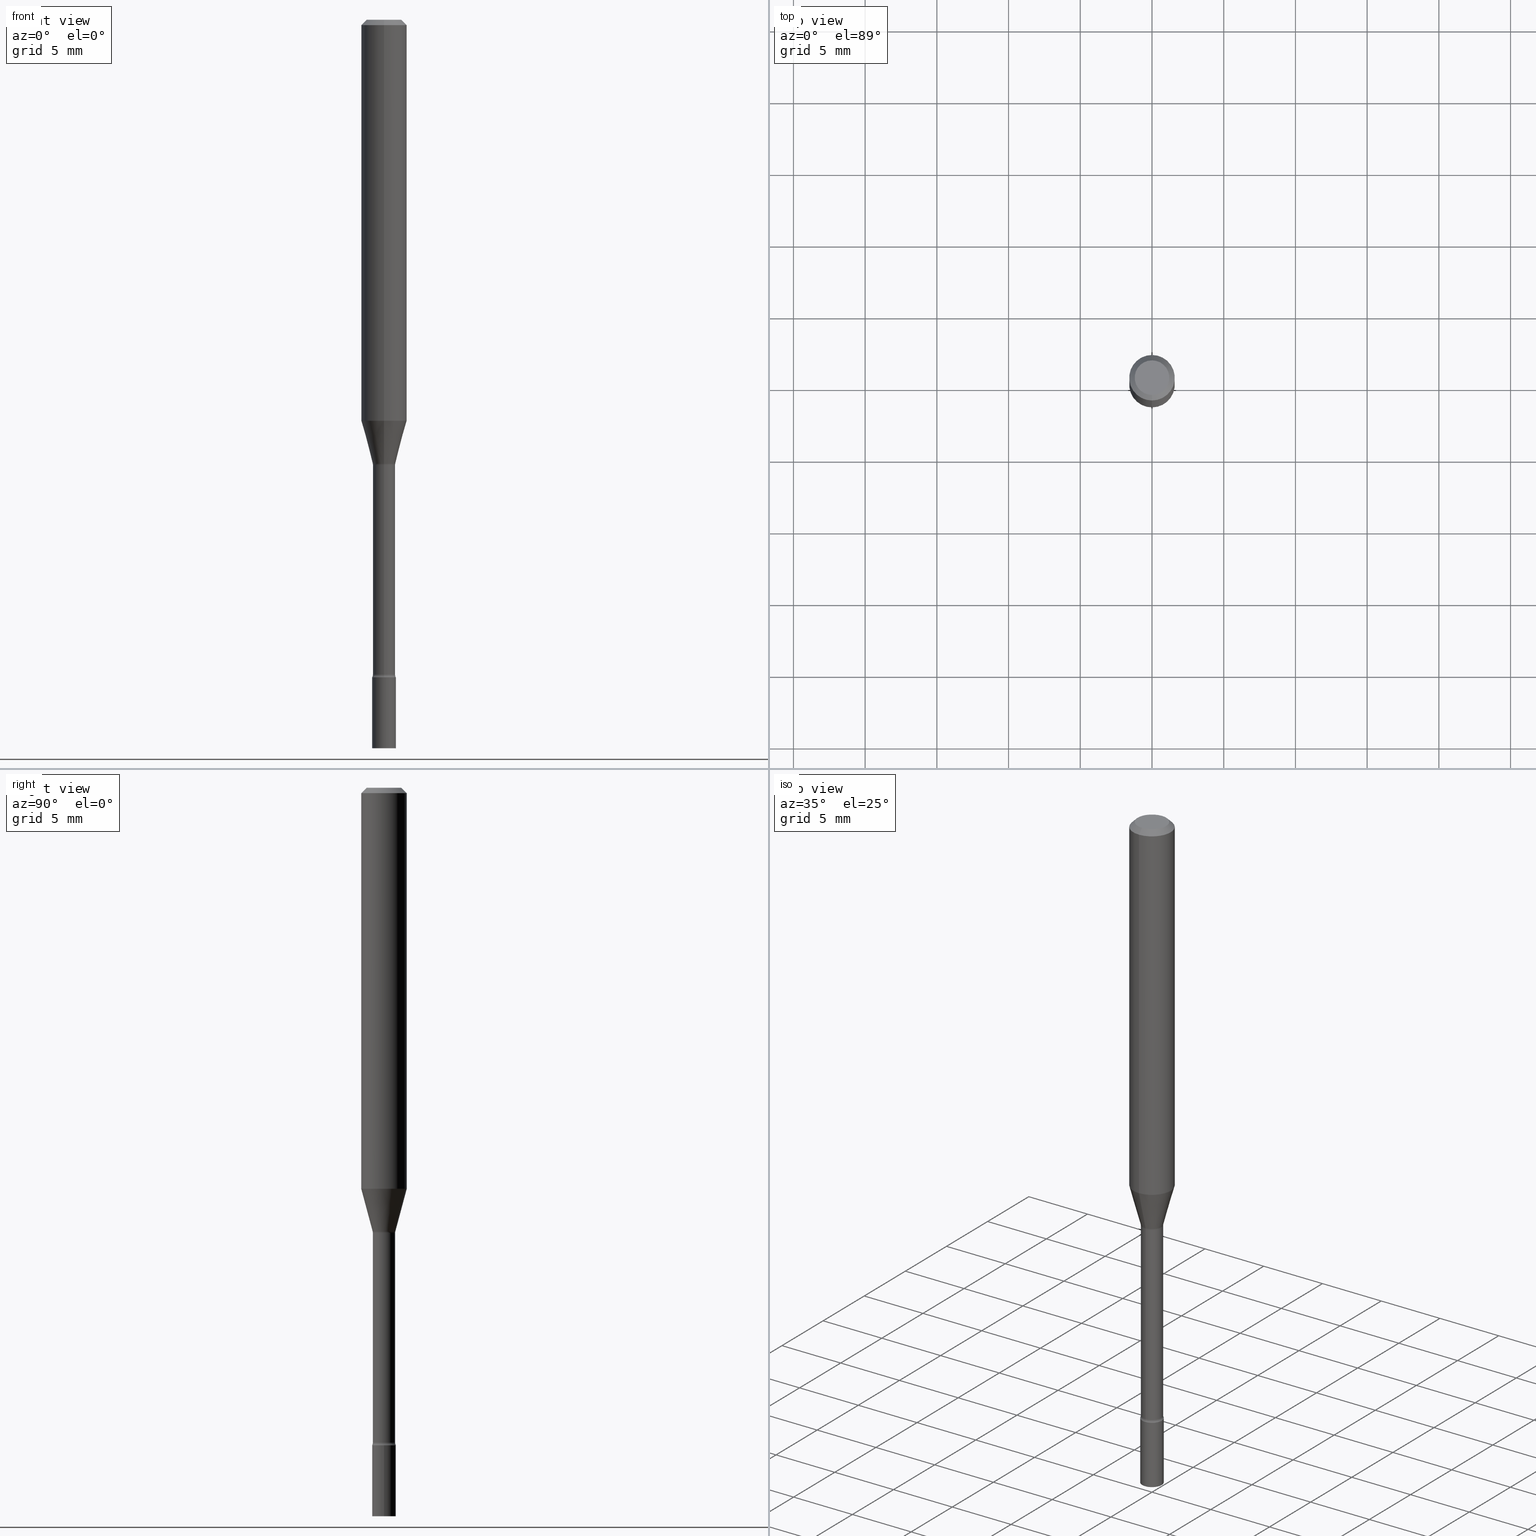
[diagram: canonical four-view strip — front | top / right | iso, engineering-drawing reading convention]
A machine part, canonical four-view strip (front | top / right | iso — engineering-drawing reading convention). The complete STEP part file that produces these views, byte-faithful:
ISO-10303-21;
HEADER;
FILE_DESCRIPTION (( 'STEP AP203' ),
    '1' );
FILE_NAME ('09380.STEP',
    '2024-03-08T23:31:31',
    ( '' ),
    ( '' ),
    'SwSTEP 2.0',
    'SolidWorks 2023',
    '' );
FILE_SCHEMA (( 'CONFIG_CONTROL_DESIGN' ));
ENDSEC;

DATA;
#1 = CIRCLE ( 'NONE', #319, 0.06250000000000000000 ) ;
#2 = CIRCLE ( 'NONE', #347, 0.03055000000000000770 ) ;
#3 = COORDINATED_UNIVERSAL_TIME_OFFSET ( 5, 0, .BEHIND. ) ;
#4 = COORDINATED_UNIVERSAL_TIME_OFFSET ( 5, 0, .BEHIND. ) ;
#5 = ORIENTED_EDGE ( 'NONE', *, *, #223, .F. ) ;
#6 = ADVANCED_BREP_SHAPE_REPRESENTATION ( '09380', ( #214, #381, #273 ), #315 ) ;
#7 = AXIS2_PLACEMENT_3D ( 'NONE', #458, #222, #140 ) ;
#8 = CIRCLE ( 'NONE', #7, 0.04749999999999999362 ) ;
#9 = CC_DESIGN_APPROVAL ( #438, ( #372 ) ) ;
#10 = CC_DESIGN_DATE_AND_TIME_ASSIGNMENT ( #120, #407, ( #462 ) ) ;
#11 = ORIENTED_EDGE ( 'NONE', *, *, #223, .T. ) ;
#12 = DIRECTION ( 'NONE',  ( 1.000000000000000000, -6.982962677686265922E-15, 4.876176775795935232E-29 ) ) ;
#13 = VERTEX_POINT ( 'NONE', #78 ) ;
#14 = VERTEX_POINT ( 'NONE', #334 ) ;
#15 = EDGE_CURVE ( 'NONE', #52, #376, #232, .T. ) ;
#16 = ORIENTED_EDGE ( 'NONE', *, *, #63, .T. ) ;
#17 = LINE ( 'NONE', #62, #456 ) ;
#18 = EDGE_CURVE ( 'NONE', #194, #268, #387, .T. ) ;
#19 = DESIGN_CONTEXT ( 'detailed design', #326, 'design' ) ;
#20 = AXIS2_PLACEMENT_3D ( 'NONE', #136, #445, #81 ) ;
#21 = CIRCLE ( 'NONE', #116, 0.03106111260566398607 ) ;
#22 = CARTESIAN_POINT ( 'NONE',  ( 3.668709739033173181E-31, -5.236496628825025190E-17, -0.01500000000000003067 ) ) ;
#23 = DIRECTION ( 'NONE',  ( -2.445806492688777345E-29, 3.490997752550009973E-15, 1.000000000000000000 ) ) ;
#24 = ORIENTED_EDGE ( 'NONE', *, *, #139, .F. ) ;
#25 = DIRECTION ( 'NONE',  ( -2.445806492688777345E-29, 3.490997752550010367E-15, 1.000000000000000000 ) ) ;
#26 = CARTESIAN_POINT ( 'NONE',  ( 2.269462870248477753E-16, 0.03249999999999370059, -1.804999999999999938 ) ) ;
#27 = AXIS2_PLACEMENT_3D ( 'NONE', #452, #118, #12 ) ;
#28 = FACE_OUTER_BOUND ( 'NONE', #85, .T. ) ;
#29 = CARTESIAN_POINT ( 'NONE',  ( 3.236522161387700589E-16, 0.04554999999999379684, -1.797604224178627419 ) ) ;
#30 = DIRECTION ( 'NONE',  ( -2.445468806185136597E-29, 3.491481338843145583E-15, 1.000000000000000000 ) ) ;
#31 = EDGE_CURVE ( 'NONE', #194, #360, #96, .T. ) ;
#32 = CARTESIAN_POINT ( 'NONE',  ( 3.316907271900976096E-16, 0.04749999999999999362, -1.802908338845219502E-16 ) ) ;
#33 = ORIENTED_EDGE ( 'NONE', *, *, #485, .T. ) ;
#34 = EDGE_LOOP ( 'NONE', ( #51, #16, #478, #92 ) ) ;
#35 = EDGE_CURVE ( 'NONE', #227, #13, #158, .T. ) ;
#36 = DIRECTION ( 'NONE',  ( 6.982962677686265922E-15, 1.000000000000000000, -3.490997752550010367E-15 ) ) ;
#37 = AXIS2_PLACEMENT_3D ( 'NONE', #469, #269, #230 ) ;
#38 = ORIENTED_EDGE ( 'NONE', *, *, #208, .T. ) ;
#39 = CARTESIAN_POINT ( 'NONE',  ( 2.309263891220770403E-16, 0.03249999999999374917, -1.804999999999999938 ) ) ;
#40 = ORIENTED_EDGE ( 'NONE', *, *, #35, .F. ) ;
#41 = PERSON_AND_ORGANIZATION ( #472, #395 ) ;
#42 = AXIS2_PLACEMENT_3D ( 'NONE', #508, #496, #258 ) ;
#43 = APPROVAL_DATE_TIME ( #202, #438 ) ;
#44 = CARTESIAN_POINT ( 'NONE',  ( 0.000000000000000000, 0.000000000000000000, 0.000000000000000000 ) ) ;
#45 = ADVANCED_FACE ( 'NONE', ( #460 ), #80, .F. ) ;
#46 = CALENDAR_DATE ( 2024, 8, 3 ) ;
#47 = ORIENTED_EDGE ( 'NONE', *, *, #205, .T. ) ;
#48 = AXIS2_PLACEMENT_3D ( 'NONE', #348, #102, #396 ) ;
#49 = AXIS2_PLACEMENT_3D ( 'NONE', #317, #517, #437 ) ;
#50 = APPROVAL_DATE_TIME ( #138, #429 ) ;
#51 = ORIENTED_EDGE ( 'NONE', *, *, #205, .F. ) ;
#52 = VERTEX_POINT ( 'NONE', #421 ) ;
#53 = DIRECTION ( 'NONE',  ( 4.937700262164548042E-15, 0.7071067811865451302, -0.7071067811865499042 ) ) ;
#54 = CARTESIAN_POINT ( 'NONE',  ( 0.03250000000000000111, -2.269462870248036484E-16, 1.584757452133678993E-30 ) ) ;
#55 = DIRECTION ( 'NONE',  ( 7.105427357601001859E-15, 1.000000000000000000, 0.000000000000000000 ) ) ;
#56 = CIRCLE ( 'NONE', #175, 0.01499999999999998557 ) ;
#57 = CC_DESIGN_APPROVAL ( #429, ( #108 ) ) ;
#58 = CARTESIAN_POINT ( 'NONE',  ( -4.364351673553916201E-16, -0.06250000000000000000, 2.181873595343755987E-16 ) ) ;
#59 = ORIENTED_EDGE ( 'NONE', *, *, #494, .T. ) ;
#60 = CARTESIAN_POINT ( 'NONE',  ( 2.988713869080976810E-29, -4.265911236708938277E-15, -1.221974787463810497 ) ) ;
#61 = CARTESIAN_POINT ( 'NONE',  ( 4.890937612370273194E-29, -6.982962677686291165E-15, -2.000000000000000000 ) ) ;
#62 = CARTESIAN_POINT ( 'NONE',  ( 2.207024792658399811E-16, 0.03106111260565973600, -1.218092501787273019 ) ) ;
#63 = EDGE_CURVE ( 'NONE', #418, #268, #221, .T. ) ;
#64 = CARTESIAN_POINT ( 'NONE',  ( 3.323958445579647462E-16, 0.03106111260565973600, -1.218092501787273019 ) ) ;
#65 = CIRCLE ( 'NONE', #475, 0.03250000000000000111 ) ;
#66 = DIRECTION ( 'NONE',  ( -2.445806492688777345E-29, 3.490997752550009973E-15, 1.000000000000000000 ) ) ;
#67 = CARTESIAN_POINT ( 'NONE',  ( -2.133295098033154028E-16, -0.03055000000000000077, 1.066499813404028024E-16 ) ) ;
#68 = ORIENTED_EDGE ( 'NONE', *, *, #31, .T. ) ;
#69 = FACE_OUTER_BOUND ( 'NONE', #257, .T. ) ;
#70 = ADVANCED_FACE ( 'NONE', ( #311 ), #335, .F. ) ;
#71 = FACE_OUTER_BOUND ( 'NONE', #419, .T. ) ;
#72 = CARTESIAN_POINT ( 'NONE',  ( 4.890937612370273194E-29, -6.982962677686291165E-15, -2.000000000000000000 ) ) ;
#73 = AXIS2_PLACEMENT_3D ( 'NONE', #330, #255, #366 ) ;
#74 = AXIS2_PLACEMENT_3D ( 'NONE', #238, #318, #397 ) ;
#75 = AXIS2_PLACEMENT_3D ( 'NONE', #189, #479, #113 ) ;
#76 = ORIENTED_EDGE ( 'NONE', *, *, #386, .F. ) ;
#77 = CARTESIAN_POINT ( 'NONE',  ( 4.414071195164171423E-29, -6.302123816611877952E-15, -1.804999999999999938 ) ) ;
#78 = CARTESIAN_POINT ( 'NONE',  ( -2.133295098032855987E-16, -0.03055000000000427166, -1.221974787463810497 ) ) ;
#79 =( NAMED_UNIT ( * ) PLANE_ANGLE_UNIT ( ) SI_UNIT ( $, .RADIAN. ) );
#80 = TOROIDAL_SURFACE ( 'NONE', #271, 0.04555000000000000021, 0.01499999999999998557 ) ;
#81 = DIRECTION ( 'NONE',  ( -6.982962677686265922E-15, -1.000000000000000000, 4.370956789862821150E-15 ) ) ;
#82 = DIRECTION ( 'NONE',  ( 1.000000000000000000, -6.982962677686258033E-15, 0.000000000000000000 ) ) ;
#83 = COORDINATED_UNIVERSAL_TIME_OFFSET ( 5, 0, .BEHIND. ) ;
#84 = ADVANCED_FACE ( 'NONE', ( #515 ), #107, .T. ) ;
#85 = EDGE_LOOP ( 'NONE', ( #127, #33, #216, #333 ) ) ;
#86 = PERSON_AND_ORGANIZATION_ROLE ( 'creator' ) ;
#87 = ORIENTED_EDGE ( 'NONE', *, *, #274, .T. ) ;
#88 = CONICAL_SURFACE ( 'NONE', #402, 0.06250000000000000000, 0.7853981633974483900 ) ;
#89 = ORIENTED_EDGE ( 'NONE', *, *, #411, .T. ) ;
#90 = DIRECTION ( 'NONE',  ( -2.445806492688777345E-29, 3.490997752550009973E-15, 1.000000000000000000 ) ) ;
#91 = DIRECTION ( 'NONE',  ( -6.982962677686265922E-15, -1.000000000000000000, 3.483106191921935554E-15 ) ) ;
#92 = ORIENTED_EDGE ( 'NONE', *, *, #324, .F. ) ;
#93 = CARTESIAN_POINT ( 'NONE',  ( -3.180739499685659028E-16, -0.04555000000000634236, -1.797604224178626975 ) ) ;
#94 = ORIENTED_EDGE ( 'NONE', *, *, #471, .T. ) ;
#95 = DIRECTION ( 'NONE',  ( -2.445468806185136597E-29, 3.491481338843145583E-15, 1.000000000000000000 ) ) ;
#96 = CIRCLE ( 'NONE', #20, 0.06250000000000000000 ) ;
#97 = CIRCLE ( 'NONE', #75, 0.06250000000000000000 ) ;
#98 = DIRECTION ( 'NONE',  ( -6.982962677686265922E-15, -1.000000000000000000, 3.483106191921935554E-15 ) ) ;
#99 = EDGE_CURVE ( 'NONE', #328, #112, #161, .T. ) ;
#100 = EDGE_LOOP ( 'NONE', ( #177, #455, #135, #211 ) ) ;
#101 = DIRECTION ( 'NONE',  ( 7.105427357601001859E-15, 1.000000000000000000, 0.000000000000000000 ) ) ;
#102 = DIRECTION ( 'NONE',  ( -2.445806492688777345E-29, 3.490997752550009973E-15, 1.000000000000000000 ) ) ;
#103 = ADVANCED_FACE ( 'NONE', ( #340 ), #299, .T. ) ;
#104 = DIRECTION ( 'NONE',  ( -6.982962677686265922E-15, -1.000000000000000000, 4.397537249142375435E-15 ) ) ;
#105 = CARTESIAN_POINT ( 'NONE',  ( 3.840629472727447874E-16, 0.04749999999999999362, -1.947592745229184365E-16 ) ) ;
#106 = EDGE_CURVE ( 'NONE', #380, #132, #65, .T. ) ;
#107 = CONICAL_SURFACE ( 'NONE', #73, 0.03106111260566398607, 0.2617993877991500740 ) ;
#108 = SECURITY_CLASSIFICATION ( '', '', #448 ) ;
#109 = DIRECTION ( 'NONE',  ( -6.982962677686265922E-15, -1.000000000000000000, 0.000000000000000000 ) ) ;
#110 = EDGE_LOOP ( 'NONE', ( #325, #24, #305, #303 ) ) ;
#111 = DIRECTION ( 'NONE',  ( 1.000000000000000000, -6.982962677686258033E-15, 0.000000000000000000 ) ) ;
#112 = VERTEX_POINT ( 'NONE', #250 ) ;
#113 = DIRECTION ( 'NONE',  ( -6.982962677686265922E-15, -1.000000000000000000, 4.370956789862821150E-15 ) ) ;
#114 = EDGE_CURVE ( 'NONE', #227, #194, #149, .T. ) ;
#115 = DIRECTION ( 'NONE',  ( -6.982962677686265922E-15, -1.000000000000000000, 3.490997752550009973E-15 ) ) ;
#116 = AXIS2_PLACEMENT_3D ( 'NONE', #197, #359, #518 ) ;
#117 =( NAMED_UNIT ( * ) SI_UNIT ( $, .STERADIAN. ) SOLID_ANGLE_UNIT ( ) );
#118 = DIRECTION ( 'NONE',  ( -2.445468806185136597E-29, 3.491481338843145583E-15, 1.000000000000000000 ) ) ;
#119 = ADVANCED_FACE ( 'NONE', ( #507 ), #382, .T. ) ;
#120 = DATE_AND_TIME ( #453, #337 ) ;
#121 = AXIS2_PLACEMENT_3D ( 'NONE', #385, #90, #308 ) ;
#122 = AXIS2_PLACEMENT_3D ( 'NONE', #72, #30, #354 ) ;
#123 = PERSON_AND_ORGANIZATION ( #472, #395 ) ;
#124 = VERTEX_POINT ( 'NONE', #162 ) ;
#125 = LENGTH_MEASURE_WITH_UNIT ( LENGTH_MEASURE( 0.02539999999999999897 ), #412 );
#126 = ORIENTED_EDGE ( 'NONE', *, *, #442, .T. ) ;
#127 = ORIENTED_EDGE ( 'NONE', *, *, #99, .F. ) ;
#128 = CARTESIAN_POINT ( 'NONE',  ( 4.364351673553919652E-16, 0.06249999999999995143, -0.01500000000000024751 ) ) ;
#129 = DIRECTION ( 'NONE',  ( 6.982962677686265922E-15, 1.000000000000000000, -3.483106191921935554E-15 ) ) ;
#130 = CIRCLE ( 'NONE', #212, 0.03054999999999998689 ) ;
#131 = CIRCLE ( 'NONE', #233, 0.03106111260566398607 ) ;
#132 = VERTEX_POINT ( 'NONE', #501 ) ;
#133 = PLANE ( 'NONE',  #424 ) ;
#134 = ADVANCED_FACE ( 'NONE', ( #164 ), #198, .T. ) ;
#135 = ORIENTED_EDGE ( 'NONE', *, *, #219, .T. ) ;
#136 = CARTESIAN_POINT ( 'NONE',  ( 2.692248343706835071E-29, -3.842754095748081161E-15, -1.100760976698174520 ) ) ;
#137 = CARTESIAN_POINT ( 'NONE',  ( 4.440892098500625669E-16, 0.06250000000000000000, -2.181873595343755987E-16 ) ) ;
#138 = DATE_AND_TIME ( #427, #176 ) ;
#139 = EDGE_CURVE ( 'NONE', #52, #328, #130, .T. ) ;
#140 = DIRECTION ( 'NONE',  ( -6.982962677686266711E-15, -1.000000000000000000, 3.490997752550010367E-15 ) ) ;
#141 = CIRCLE ( 'NONE', #394, 0.03055000000000000770 ) ;
#142 = CARTESIAN_POINT ( 'NONE',  ( -4.364351673553912750E-16, -0.06250000000000005551, -0.01499999999999981209 ) ) ;
#143 = DIRECTION ( 'NONE',  ( -6.982962677686265922E-15, -1.000000000000000000, 0.000000000000000000 ) ) ;
#144 = EDGE_CURVE ( 'NONE', #328, #463, #513, .T. ) ;
#145 = EDGE_CURVE ( 'NONE', #52, #13, #338, .T. ) ;
#146 = CARTESIAN_POINT ( 'NONE',  ( -2.168985900527322372E-16, -0.03106111260566823615, -1.218092501787272797 ) ) ;
#147 = DIRECTION ( 'NONE',  ( -2.445806492688777345E-29, 3.490997752550009973E-15, 1.000000000000000000 ) ) ;
#148 = EDGE_LOOP ( 'NONE', ( #89, #59, #298, #254 ) ) ;
#149 = LINE ( 'NONE', #146, #249 ) ;
#150 = CC_DESIGN_PERSON_AND_ORGANIZATION_ASSIGNMENT ( #489, #361, ( #372 ) ) ;
#151 = VECTOR ( 'NONE', #25, 39.37007874015748143 ) ;
#152 = CIRCLE ( 'NONE', #204, 0.03250000000000000111 ) ;
#153 = FACE_OUTER_BOUND ( 'NONE', #252, .T. ) ;
#154 = DIRECTION ( 'NONE',  ( -6.982962677686265922E-15, -1.000000000000000000, 4.471109645931689948E-15 ) ) ;
#155 = DIRECTION ( 'NONE',  ( -2.445806492688777345E-29, 3.490997752550009973E-15, 1.000000000000000000 ) ) ;
#156 = DIRECTION ( 'NONE',  ( -2.445806492688777345E-29, 3.490997752550009973E-15, 1.000000000000000000 ) ) ;
#157 = PERSON_AND_ORGANIZATION ( #472, #395 ) ;
#158 = CIRCLE ( 'NONE', #362, 0.01499999999999998557 ) ;
#159 = LOCAL_TIME ( 18, 31, 31.00000000000000000, #3 ) ;
#160 = DATE_AND_TIME ( #46, #159 ) ;
#161 = LINE ( 'NONE', #490, #187 ) ;
#162 = CARTESIAN_POINT ( 'NONE',  ( 0.03250000000000000111, -6.529070103636681305E-15, -1.804999999999999938 ) ) ;
#163 = ORIENTED_EDGE ( 'NONE', *, *, #386, .T. ) ;
#164 = FACE_OUTER_BOUND ( 'NONE', #215, .T. ) ;
#165 = ORIENTED_EDGE ( 'NONE', *, *, #247, .F. ) ;
#166 = AXIS2_PLACEMENT_3D ( 'NONE', #195, #270, #280 ) ;
#167 = UNCERTAINTY_MEASURE_WITH_UNIT (LENGTH_MEASURE( 1.000000000000000082E-05 ), #286, 'distance_accuracy_value', 'NONE');
#168 = PERSON_AND_ORGANIZATION_ROLE ( 'design_owner' ) ;
#169 = ORIENTED_EDGE ( 'NONE', *, *, #190, .F. ) ;
#170 = ORIENTED_EDGE ( 'NONE', *, *, #253, .T. ) ;
#171 = ORIENTED_EDGE ( 'NONE', *, *, #31, .F. ) ;
#172 = DIRECTION ( 'NONE',  ( 1.000000000000000000, -6.982962677686265922E-15, 4.876176775795935232E-29 ) ) ;
#173 = ORIENTED_EDGE ( 'NONE', *, *, #471, .F. ) ;
#174 = CARTESIAN_POINT ( 'NONE',  ( 4.414071195164171423E-29, -6.302123816611877952E-15, -1.804999999999999938 ) ) ;
#175 = AXIS2_PLACEMENT_3D ( 'NONE', #260, #506, #101 ) ;
#176 = LOCAL_TIME ( 18, 31, 31.00000000000000000, #498 ) ;
#177 = ORIENTED_EDGE ( 'NONE', *, *, #485, .F. ) ;
#178 = DIRECTION ( 'NONE',  ( -1.000000000000000000, 6.982962677686265922E-15, -4.883557194083112340E-29 ) ) ;
#179 = FACE_OUTER_BOUND ( 'NONE', #34, .T. ) ;
#180 = ORIENTED_EDGE ( 'NONE', *, *, #374, .F. ) ;
#181 = ADVANCED_FACE ( 'NONE', ( #192 ), #322, .T. ) ;
#182 = EDGE_LOOP ( 'NONE', ( #287, #163, #344, #443 ) ) ;
#183 = DIRECTION ( 'NONE',  ( -2.445806492688777345E-29, 3.490997752550009973E-15, 1.000000000000000000 ) ) ;
#184 = ORIENTED_EDGE ( 'NONE', *, *, #239, .T. ) ;
#185 = DIRECTION ( 'NONE',  ( -6.982962677686265922E-15, -1.000000000000000000, 3.490997752550010367E-15 ) ) ;
#186 = CLOSED_SHELL ( 'NONE', ( #45, #329, #436, #259, #134, #119, #84, #256, #103, #408, #244, #70, #520, #392 ) ) ;
#187 = VECTOR ( 'NONE', #449, 39.37007874015748143 ) ;
#188 = DIRECTION ( 'NONE',  ( -1.807323732225328562E-15, -0.2588190451025179639, 0.9659258262890690894 ) ) ;
#189 = CARTESIAN_POINT ( 'NONE',  ( 2.692248343706835071E-29, -3.842754095748081161E-15, -1.100760976698174520 ) ) ;
#190 = EDGE_CURVE ( 'NONE', #296, #112, #56, .T. ) ;
#191 = PLANE ( 'NONE',  #384 ) ;
#192 = FACE_OUTER_BOUND ( 'NONE', #148, .T. ) ;
#193 = CARTESIAN_POINT ( 'NONE',  ( 2.979218549566828255E-29, -4.252358186137388202E-15, -1.218092501787273019 ) ) ;
#194 = VERTEX_POINT ( 'NONE', #300 ) ;
#195 = CARTESIAN_POINT ( 'NONE',  ( 0.000000000000000000, 0.000000000000000000, 0.000000000000000000 ) ) ;
#196 = CC_DESIGN_PERSON_AND_ORGANIZATION_ASSIGNMENT ( #367, #86, ( #462 ) ) ;
#197 = CARTESIAN_POINT ( 'NONE',  ( 2.979218549566828255E-29, -4.252358186137388202E-15, -1.218092501787273019 ) ) ;
#198 = CYLINDRICAL_SURFACE ( 'NONE', #497, 0.06250000000000000000 ) ;
#199 = APPLICATION_PROTOCOL_DEFINITION ( 'international standard', 'config_control_design', 1994, #326 ) ;
#200 = EDGE_CURVE ( 'NONE', #296, #360, #17, .T. ) ;
#201 = ORIENTED_EDGE ( 'NONE', *, *, #208, .F. ) ;
#202 = DATE_AND_TIME ( #406, #482 ) ;
#203 = AXIS2_PLACEMENT_3D ( 'NONE', #312, #23, #468 ) ;
#204 = AXIS2_PLACEMENT_3D ( 'NONE', #77, #352, #111 ) ;
#205 = EDGE_CURVE ( 'NONE', #418, #331, #8, .T. ) ;
#206 = DIRECTION ( 'NONE',  ( 1.000000000000000000, 0.000000000000000000, 0.000000000000000000 ) ) ;
#207 = APPLICATION_PROTOCOL_DEFINITION ( 'international standard', 'config_control_design', 1994, #377 ) ;
#208 = EDGE_CURVE ( 'NONE', #331, #418, #355, .T. ) ;
#209 = COORDINATED_UNIVERSAL_TIME_OFFSET ( 5, 0, .BEHIND. ) ;
#210 = ORIENTED_EDGE ( 'NONE', *, *, #374, .T. ) ;
#211 = ORIENTED_EDGE ( 'NONE', *, *, #15, .F. ) ;
#212 = AXIS2_PLACEMENT_3D ( 'NONE', #470, #66, #143 ) ;
#213 = APPROVAL_PERSON_ORGANIZATION ( #327, #294, #289 ) ;
#214 = MANIFOLD_SOLID_BREP ( 'Body-Move/Copy2[1]', #401 ) ;
#215 = EDGE_LOOP ( 'NONE', ( #68, #87, #165, #217 ) ) ;
#216 = ORIENTED_EDGE ( 'NONE', *, *, #145, .T. ) ;
#217 = ORIENTED_EDGE ( 'NONE', *, *, #18, .F. ) ;
#218 = CARTESIAN_POINT ( 'NONE',  ( -2.168985900527322372E-16, -0.03106111260566823615, -1.218092501787272797 ) ) ;
#219 = EDGE_CURVE ( 'NONE', #463, #376, #265, .T. ) ;
#220 = ORIENTED_EDGE ( 'NONE', *, *, #139, .T. ) ;
#221 = LINE ( 'NONE', #246, #225 ) ;
#222 = DIRECTION ( 'NONE',  ( -2.445806492688777345E-29, 3.490997752550009973E-15, 1.000000000000000000 ) ) ;
#223 = EDGE_CURVE ( 'NONE', #365, #124, #241, .T. ) ;
#224 = DIMENSIONAL_EXPONENTS ( 1.000000000000000000, 0.000000000000000000, 0.000000000000000000, 0.000000000000000000, 0.000000000000000000, 0.000000000000000000, 0.000000000000000000 ) ;
#225 = VECTOR ( 'NONE', #486, 39.37007874015748143 ) ;
#226 = CC_DESIGN_APPROVAL ( #294, ( #462 ) ) ;
#227 = VERTEX_POINT ( 'NONE', #218 ) ;
#228 = DIRECTION ( 'NONE',  ( -2.445468806185136877E-29, 3.491481338843145188E-15, 1.000000000000000000 ) ) ;
#229 = PRODUCT ( '09380', '09380', '', ( #295 ) ) ;
#230 = DIRECTION ( 'NONE',  ( -1.000000000000000000, 6.982962677686265922E-15, -4.876176775795935793E-29 ) ) ;
#231 = FACE_OUTER_BOUND ( 'NONE', #454, .T. ) ;
#232 = CIRCLE ( 'NONE', #446, 0.01500000000000007924 ) ;
#233 = AXIS2_PLACEMENT_3D ( 'NONE', #193, #147, #441 ) ;
#234 = DIRECTION ( 'NONE',  ( -2.445806492688777345E-29, 3.490997752550009973E-15, 1.000000000000000000 ) ) ;
#235 = DIRECTION ( 'NONE',  ( -2.445806492688777345E-29, 3.490997752550009973E-15, 1.000000000000000000 ) ) ;
#236 = CYLINDRICAL_SURFACE ( 'NONE', #166, 0.03055000000000000077 ) ;
#237 = ORIENTED_EDGE ( 'NONE', *, *, #411, .F. ) ;
#238 = CARTESIAN_POINT ( 'NONE',  ( 2.988301224687461483E-29, -4.266502166966713670E-15, -1.221974787463810719 ) ) ;
#239 = EDGE_CURVE ( 'NONE', #14, #268, #1, .T. ) ;
#240 = VECTOR ( 'NONE', #53, 39.37007874015748143 ) ;
#241 = CIRCLE ( 'NONE', #409, 0.03250000000000000111 ) ;
#242 = TOROIDAL_SURFACE ( 'NONE', #410, 0.04555000000000006960, 0.01500000000000008271 ) ;
#243 = CARTESIAN_POINT ( 'NONE',  ( 2.988713869080976810E-29, -4.265911236708938277E-15, -1.221974787463810497 ) ) ;
#244 = ADVANCED_FACE ( 'NONE', ( #307 ), #133, .F. ) ;
#245 = FACE_OUTER_BOUND ( 'NONE', #100, .T. ) ;
#246 = CARTESIAN_POINT ( 'NONE',  ( -4.287811248607203282E-16, -0.06250000000000005551, -0.01499999999999981209 ) ) ;
#247 = EDGE_CURVE ( 'NONE', #268, #14, #282, .T. ) ;
#248 = APPROVAL_STATUS ( 'not_yet_approved' ) ;
#249 = VECTOR ( 'NONE', #188, 39.37007874015748854 ) ;
#250 = CARTESIAN_POINT ( 'NONE',  ( 2.170708057747546652E-16, 0.03054999999999574375, -1.221974787463810719 ) ) ;
#251 = DATE_TIME_ROLE ( 'classification_date' ) ;
#252 = EDGE_LOOP ( 'NONE', ( #220, #457, #491, #356 ) ) ;
#253 = EDGE_CURVE ( 'NONE', #132, #124, #345, .T. ) ;
#254 = ORIENTED_EDGE ( 'NONE', *, *, #253, .F. ) ;
#255 = DIRECTION ( 'NONE',  ( -2.445806492688777345E-29, 3.490997752550009973E-15, 1.000000000000000000 ) ) ;
#256 = ADVANCED_FACE ( 'NONE', ( #336 ), #422, .T. ) ;
#257 = EDGE_LOOP ( 'NONE', ( #38, #47 ) ) ;
#258 = DIRECTION ( 'NONE',  ( -6.982962677686265922E-15, -1.000000000000000000, 3.490997752550009579E-15 ) ) ;
#259 = ADVANCED_FACE ( 'NONE', ( #179 ), #88, .T. ) ;
#260 = CARTESIAN_POINT ( 'NONE',  ( 3.236522161387554650E-16, 0.04554999999999573279, -1.221974787463810941 ) ) ;
#261 = DIRECTION ( 'NONE',  ( 6.982962677686265922E-15, 1.000000000000000000, -3.483106191921935554E-15 ) ) ;
#262 = CARTESIAN_POINT ( 'NONE',  ( 3.668709739033173181E-31, -5.236496628825025190E-17, -0.01500000000000003067 ) ) ;
#263 = EDGE_LOOP ( 'NONE', ( #173, #488, #126, #40 ) ) ;
#264 = PLANE ( 'NONE',  #37 ) ;
#265 = CIRCLE ( 'NONE', #203, 0.03250000000000000111 ) ;
#266 = AXIS2_PLACEMENT_3D ( 'NONE', #434, #350, #357 ) ;
#267 = CARTESIAN_POINT ( 'NONE',  ( 3.668709739033173181E-31, -5.236496628825025190E-17, -0.01500000000000003067 ) ) ;
#268 = VERTEX_POINT ( 'NONE', #142 ) ;
#269 = DIRECTION ( 'NONE',  ( 2.438088387897960049E-29, -3.491481338843145188E-15, -1.000000000000000000 ) ) ;
#270 = DIRECTION ( 'NONE',  ( -2.445806492688777345E-29, 3.490997752550009973E-15, 1.000000000000000000 ) ) ;
#271 = AXIS2_PLACEMENT_3D ( 'NONE', #306, #464, #351 ) ;
#272 = ORIENTED_EDGE ( 'NONE', *, *, #114, .T. ) ;
#273 = AXIS2_PLACEMENT_3D ( 'NONE', #44, #444, #206 ) ;
#274 = EDGE_CURVE ( 'NONE', #360, #14, #304, .T. ) ;
#275 = LINE ( 'NONE', #477, #417 ) ;
#276 = CARTESIAN_POINT ( 'NONE',  ( 4.440892098500895360E-16, 0.06249999999999617667, -1.100760976698174742 ) ) ;
#277 = ADVANCED_FACE ( 'NONE', ( #502 ), #264, .T. ) ;
#278 = CARTESIAN_POINT ( 'NONE',  ( 0.000000000000000000, 0.000000000000000000, 0.000000000000000000 ) ) ;
#279 = CC_DESIGN_DATE_AND_TIME_ASSIGNMENT ( #364, #251, ( #108 ) ) ;
#280 = DIRECTION ( 'NONE',  ( -6.982962677686265133E-15, -1.000000000000000000, 3.490997752550009973E-15 ) ) ;
#281 = EDGE_LOOP ( 'NONE', ( #237, #495 ) ) ;
#282 = CIRCLE ( 'NONE', #346, 0.06250000000000000000 ) ;
#283 = LOCAL_TIME ( 18, 31, 31.00000000000000000, #83 ) ;
#284 = DIRECTION ( 'NONE',  ( -2.445468806185136877E-29, 3.491481338843145188E-15, 1.000000000000000000 ) ) ;
#285 = EDGE_CURVE ( 'NONE', #13, #112, #141, .T. ) ;
#286 =( CONVERSION_BASED_UNIT ( 'INCH', #125 ) LENGTH_UNIT ( ) NAMED_UNIT ( #224 ) );
#287 = ORIENTED_EDGE ( 'NONE', *, *, #274, .F. ) ;
#288 = APPROVAL_ROLE ( '' ) ;
#289 = APPROVAL_ROLE ( '' ) ;
#290 = VECTOR ( 'NONE', #476, 39.37007874015748143 ) ;
#291 = APPROVAL_PERSON_ORGANIZATION ( #41, #438, #492 ) ;
#292 = DIRECTION ( 'NONE',  ( -6.982962677686267499E-15, -1.000000000000000000, 0.000000000000000000 ) ) ;
#293 = APPROVAL_STATUS ( 'not_yet_approved' ) ;
#294 = APPROVAL ( #248, 'UNSPECIFIED' ) ;
#295 = MECHANICAL_CONTEXT ( 'NONE', #377, 'mechanical' ) ;
#296 = VERTEX_POINT ( 'NONE', #64 ) ;
#297 = DIRECTION ( 'NONE',  ( 2.445806492688777345E-29, -3.490997752550009973E-15, -1.000000000000000000 ) ) ;
#298 = ORIENTED_EDGE ( 'NONE', *, *, #516, .F. ) ;
#299 = CONICAL_SURFACE ( 'NONE', #415, 0.06250000000000000000, 0.7853981633974483900 ) ;
#300 = CARTESIAN_POINT ( 'NONE',  ( -4.364351673553646016E-16, -0.06250000000000383027, -1.100760976698174298 ) ) ;
#301 = CIRCLE ( 'NONE', #433, 0.03054999999999998689 ) ;
#302 = ADVANCED_FACE ( 'NONE', ( #231 ), #420, .T. ) ;
#303 = ORIENTED_EDGE ( 'NONE', *, *, #426, .T. ) ;
#304 = LINE ( 'NONE', #137, #467 ) ;
#305 = ORIENTED_EDGE ( 'NONE', *, *, #15, .T. ) ;
#306 = CARTESIAN_POINT ( 'NONE',  ( 2.988301224687461483E-29, -4.266502166966713670E-15, -1.221974787463810719 ) ) ;
#307 = FACE_OUTER_BOUND ( 'NONE', #388, .T. ) ;
#308 = DIRECTION ( 'NONE',  ( -6.982962677686266711E-15, -1.000000000000000000, 3.490997752550010367E-15 ) ) ;
#309 = VECTOR ( 'NONE', #228, 39.37007874015748143 ) ;
#310 = CIRCLE ( 'NONE', #266, 0.03250000000000000111 ) ;
#311 = FACE_OUTER_BOUND ( 'NONE', #110, .T. ) ;
#312 = CARTESIAN_POINT ( 'NONE',  ( 4.414680719303243494E-29, -6.301250943352767922E-15, -1.804999999999999938 ) ) ;
#313 = DIRECTION ( 'NONE',  ( -2.445806492688777345E-29, 3.490997752550009973E-15, 1.000000000000000000 ) ) ;
#314 = CARTESIAN_POINT ( 'NONE',  ( -2.269462870247597680E-16, -0.03250000000000634326, -1.804999999999999938 ) ) ;
#315 =( GEOMETRIC_REPRESENTATION_CONTEXT ( 3 ) GLOBAL_UNCERTAINTY_ASSIGNED_CONTEXT ( ( #167 ) ) GLOBAL_UNIT_ASSIGNED_CONTEXT ( ( #286, #79, #117 ) ) REPRESENTATION_CONTEXT ( 'NONE', 'WORKASPACE' ) );
#316 = FACE_OUTER_BOUND ( 'NONE', #358, .T. ) ;
#317 = CARTESIAN_POINT ( 'NONE',  ( 4.414071195164171423E-29, -6.302123816611877952E-15, -1.804999999999999938 ) ) ;
#318 = DIRECTION ( 'NONE',  ( -2.445806492688777345E-29, 3.490997752550009973E-15, 1.000000000000000000 ) ) ;
#319 = AXIS2_PLACEMENT_3D ( 'NONE', #22, #461, #98 ) ;
#320 = PERSON_AND_ORGANIZATION_ROLE ( 'classification_officer' ) ;
#321 = PERSON_AND_ORGANIZATION ( #472, #395 ) ;
#322 = CYLINDRICAL_SURFACE ( 'NONE', #27, 0.03250000000000000111 ) ;
#323 = APPROVAL_DATE_TIME ( #160, #294 ) ;
#324 = EDGE_CURVE ( 'NONE', #331, #14, #332, .T. ) ;
#325 = ORIENTED_EDGE ( 'NONE', *, *, #144, .F. ) ;
#326 = APPLICATION_CONTEXT ( 'configuration controlled 3d designs of mechanical parts and assemblies' ) ;
#327 = PERSON_AND_ORGANIZATION ( #472, #395 ) ;
#328 = VERTEX_POINT ( 'NONE', #378 ) ;
#329 = ADVANCED_FACE ( 'NONE', ( #153 ), #236, .T. ) ;
#330 = CARTESIAN_POINT ( 'NONE',  ( 2.979218549566828255E-29, -4.252358186137388202E-15, -1.218092501787273019 ) ) ;
#331 = VERTEX_POINT ( 'NONE', #105 ) ;
#332 = LINE ( 'NONE', #128, #240 ) ;
#333 = ORIENTED_EDGE ( 'NONE', *, *, #442, .F. ) ;
#334 = CARTESIAN_POINT ( 'NONE',  ( 4.440892098500897333E-16, 0.06249999999999995837, -0.01500000000000024751 ) ) ;
#335 = TOROIDAL_SURFACE ( 'NONE', #48, 0.04555000000000006960, 0.01500000000000008271 ) ;
#336 = FACE_OUTER_BOUND ( 'NONE', #182, .T. ) ;
#337 = LOCAL_TIME ( 18, 31, 31.00000000000000000, #4 ) ;
#338 = LINE ( 'NONE', #67, #290 ) ;
#339 = ORIENTED_EDGE ( 'NONE', *, *, #200, .T. ) ;
#340 = FACE_OUTER_BOUND ( 'NONE', #375, .T. ) ;
#341 = DIRECTION ( 'NONE',  ( 1.839019923739598738E-15, 0.2588190451025247363, 0.9659258262890673130 ) ) ;
#342 = DIRECTION ( 'NONE',  ( -2.445468806185136597E-29, 3.491481338843145583E-15, 1.000000000000000000 ) ) ;
#343 = CC_DESIGN_PERSON_AND_ORGANIZATION_ASSIGNMENT ( #123, #371, ( #372 ) ) ;
#344 = ORIENTED_EDGE ( 'NONE', *, *, #18, .T. ) ;
#345 = LINE ( 'NONE', #54, #309 ) ;
#346 = AXIS2_PLACEMENT_3D ( 'NONE', #267, #430, #91 ) ;
#347 = AXIS2_PLACEMENT_3D ( 'NONE', #243, #313, #154 ) ;
#348 = CARTESIAN_POINT ( 'NONE',  ( 4.395985056095465532E-29, -6.276301603345287291E-15, -1.797604224178627197 ) ) ;
#349 = ORIENTED_EDGE ( 'NONE', *, *, #200, .F. ) ;
#350 = DIRECTION ( 'NONE',  ( -2.445806492688777345E-29, 3.490997752550009973E-15, 1.000000000000000000 ) ) ;
#351 = DIRECTION ( 'NONE',  ( -6.982962677686265922E-15, -1.000000000000000000, 3.490997752550009973E-15 ) ) ;
#352 = DIRECTION ( 'NONE',  ( -2.445468806185136597E-29, 3.491481338843145583E-15, 1.000000000000000000 ) ) ;
#353 = ADVANCED_FACE ( 'NONE', ( #71 ), #400, .T. ) ;
#354 = DIRECTION ( 'NONE',  ( 1.000000000000000000, -6.982962677686258033E-15, 0.000000000000000000 ) ) ;
#355 = CIRCLE ( 'NONE', #121, 0.04749999999999999362 ) ;
#356 = ORIENTED_EDGE ( 'NONE', *, *, #145, .F. ) ;
#357 = DIRECTION ( 'NONE',  ( -6.982962677686265922E-15, -1.000000000000000000, 0.000000000000000000 ) ) ;
#358 = EDGE_LOOP ( 'NONE', ( #169, #180, #484, #414 ) ) ;
#359 = DIRECTION ( 'NONE',  ( -2.445806492688777345E-29, 3.490997752550009973E-15, 1.000000000000000000 ) ) ;
#360 = VERTEX_POINT ( 'NONE', #276 ) ;
#361 = PERSON_AND_ORGANIZATION_ROLE ( 'design_supplier' ) ;
#362 = AXIS2_PLACEMENT_3D ( 'NONE', #413, #450, #500 ) ;
#363 = CIRCLE ( 'NONE', #122, 0.03250000000000000111 ) ;
#364 = DATE_AND_TIME ( #483, #283 ) ;
#365 = VERTEX_POINT ( 'NONE', #511 ) ;
#366 = DIRECTION ( 'NONE',  ( -6.982962677686265922E-15, -1.000000000000000000, 4.397537249142375435E-15 ) ) ;
#367 = PERSON_AND_ORGANIZATION ( #472, #395 ) ;
#368 = ORIENTED_EDGE ( 'NONE', *, *, #114, .F. ) ;
#369 = CC_DESIGN_PERSON_AND_ORGANIZATION_ASSIGNMENT ( #157, #320, ( #108 ) ) ;
#370 = AXIS2_PLACEMENT_3D ( 'NONE', #391, #235, #104 ) ;
#371 = PERSON_AND_ORGANIZATION_ROLE ( 'creator' ) ;
#372 = PRODUCT_DEFINITION_FORMATION_WITH_SPECIFIED_SOURCE ( 'ANY', '', #229, .NOT_KNOWN. ) ;
#373 = EDGE_LOOP ( 'NONE', ( #210, #339, #171, #368 ) ) ;
#374 = EDGE_CURVE ( 'NONE', #227, #296, #131, .T. ) ;
#375 = EDGE_LOOP ( 'NONE', ( #504, #201, #379, #184 ) ) ;
#376 = VERTEX_POINT ( 'NONE', #314 ) ;
#377 = APPLICATION_CONTEXT ( 'configuration controlled 3d designs of mechanical parts and assemblies' ) ;
#378 = CARTESIAN_POINT ( 'NONE',  ( 2.239985974484157911E-16, 0.03054999999999371066, -1.797604224178627197 ) ) ;
#379 = ORIENTED_EDGE ( 'NONE', *, *, #324, .T. ) ;
#380 = VERTEX_POINT ( 'NONE', #435 ) ;
#381 = MANIFOLD_SOLID_BREP ( 'Body-Move/Copy2[2]', #186 ) ;
#382 = CONICAL_SURFACE ( 'NONE', #370, 0.03106111260566398607, 0.2617993877991500740 ) ;
#383 = DIRECTION ( 'NONE',  ( -2.445806492688776784E-29, 3.490997752550010367E-15, 1.000000000000000000 ) ) ;
#384 = AXIS2_PLACEMENT_3D ( 'NONE', #32, #431, #36 ) ;
#385 = CARTESIAN_POINT ( 'NONE',  ( 7.077401210494453519E-46, -1.010185875030906767E-31, -2.893688127679296036E-17 ) ) ;
#386 = EDGE_CURVE ( 'NONE', #360, #194, #97, .T. ) ;
#387 = LINE ( 'NONE', #58, #151 ) ;
#388 = EDGE_LOOP ( 'NONE', ( #466, #423 ) ) ;
#389 = DIRECTION ( 'NONE',  ( -6.982962677686265922E-15, -1.000000000000000000, 4.471109645931689948E-15 ) ) ;
#390 = PRODUCT_RELATED_PRODUCT_CATEGORY ( 'detail', '', ( #229 ) ) ;
#391 = CARTESIAN_POINT ( 'NONE',  ( 2.979218549566828255E-29, -4.252358186137388202E-15, -1.218092501787273019 ) ) ;
#392 = ADVANCED_FACE ( 'NONE', ( #316 ), #403, .F. ) ;
#393 = CARTESIAN_POINT ( 'NONE',  ( 0.000000000000000000, 0.000000000000000000, 0.000000000000000000 ) ) ;
#394 = AXIS2_PLACEMENT_3D ( 'NONE', #60, #183, #389 ) ;
#395 = ORGANIZATION ( 'UNSPECIFIED', 'UNSPECIFIED', '' ) ;
#396 = DIRECTION ( 'NONE',  ( -6.982962677686265922E-15, -1.000000000000000000, 3.490997752550009973E-15 ) ) ;
#397 = DIRECTION ( 'NONE',  ( -6.982962677686265922E-15, -1.000000000000000000, 3.490997752550009973E-15 ) ) ;
#398 = DIRECTION ( 'NONE',  ( 1.000000000000000000, -7.105427357601001070E-15, 4.926309586318022696E-29 ) ) ;
#399 = CYLINDRICAL_SURFACE ( 'NONE', #447, 0.03055000000000000077 ) ;
#400 = PLANE ( 'NONE',  #49 ) ;
#401 = CLOSED_SHELL ( 'NONE', ( #181, #353, #302, #277 ) ) ;
#402 = AXIS2_PLACEMENT_3D ( 'NONE', #425, #428, #261 ) ;
#403 = TOROIDAL_SURFACE ( 'NONE', #74, 0.04555000000000000021, 0.01499999999999998557 ) ;
#404 = CARTESIAN_POINT ( 'NONE',  ( -3.773273898774340269E-16, -0.04749999999999999362, 1.368855119693325158E-16 ) ) ;
#405 = CC_DESIGN_PERSON_AND_ORGANIZATION_ASSIGNMENT ( #519, #168, ( #229 ) ) ;
#406 = CALENDAR_DATE ( 2024, 8, 3 ) ;
#407 = DATE_TIME_ROLE ( 'creation_date' ) ;
#408 = ADVANCED_FACE ( 'NONE', ( #69 ), #191, .F. ) ;
#409 = AXIS2_PLACEMENT_3D ( 'NONE', #174, #95, #505 ) ;
#410 = AXIS2_PLACEMENT_3D ( 'NONE', #509, #156, #115 ) ;
#411 = EDGE_CURVE ( 'NONE', #132, #380, #363, .T. ) ;
#412 =( LENGTH_UNIT ( ) NAMED_UNIT ( * ) SI_UNIT ( $, .METRE. ) );
#413 = CARTESIAN_POINT ( 'NONE',  ( -3.180739499685795106E-16, -0.04555000000000426763, -1.221974787463810497 ) ) ;
#414 = ORIENTED_EDGE ( 'NONE', *, *, #285, .T. ) ;
#415 = AXIS2_PLACEMENT_3D ( 'NONE', #262, #297, #129 ) ;
#416 = SHAPE_DEFINITION_REPRESENTATION ( #503, #6 ) ;
#417 = VECTOR ( 'NONE', #284, 39.37007874015748143 ) ;
#418 = VERTEX_POINT ( 'NONE', #404 ) ;
#419 = EDGE_LOOP ( 'NONE', ( #499, #11 ) ) ;
#420 = CYLINDRICAL_SURFACE ( 'NONE', #439, 0.03250000000000000111 ) ;
#421 = CARTESIAN_POINT ( 'NONE',  ( -2.133295098032713499E-16, -0.03055000000000625965, -1.797604224178627197 ) ) ;
#422 = CYLINDRICAL_SURFACE ( 'NONE', #42, 0.06250000000000000000 ) ;
#423 = ORIENTED_EDGE ( 'NONE', *, *, #219, .F. ) ;
#424 = AXIS2_PLACEMENT_3D ( 'NONE', #26, #383, #185 ) ;
#425 = CARTESIAN_POINT ( 'NONE',  ( 3.668709739033173181E-31, -5.236496628825025190E-17, -0.01500000000000003067 ) ) ;
#426 = EDGE_CURVE ( 'NONE', #376, #463, #310, .T. ) ;
#427 = CALENDAR_DATE ( 2024, 8, 3 ) ;
#428 = DIRECTION ( 'NONE',  ( 2.445806492688777345E-29, -3.490997752550009973E-15, -1.000000000000000000 ) ) ;
#429 = APPROVAL ( #487, 'UNSPECIFIED' ) ;
#430 = DIRECTION ( 'NONE',  ( -2.445806492688777345E-29, 3.490997752550009973E-15, 1.000000000000000000 ) ) ;
#431 = DIRECTION ( 'NONE',  ( 2.445806492688776784E-29, -3.490997752550010367E-15, -1.000000000000000000 ) ) ;
#432 = AXIS2_PLACEMENT_3D ( 'NONE', #29, #398, #55 ) ;
#433 = AXIS2_PLACEMENT_3D ( 'NONE', #474, #481, #109 ) ;
#434 = CARTESIAN_POINT ( 'NONE',  ( 4.414680719303243494E-29, -6.301250943352767922E-15, -1.804999999999999938 ) ) ;
#435 = CARTESIAN_POINT ( 'NONE',  ( -0.03250000000000000111, -6.411616858027052188E-15, -2.000000000000000000 ) ) ;
#436 = ADVANCED_FACE ( 'NONE', ( #245 ), #242, .F. ) ;
#437 = DIRECTION ( 'NONE',  ( 1.000000000000000000, -6.982962677686265922E-15, 4.876176775795935793E-29 ) ) ;
#438 = APPROVAL ( #293, 'UNSPECIFIED' ) ;
#439 = AXIS2_PLACEMENT_3D ( 'NONE', #393, #342, #172 ) ;
#440 = CC_DESIGN_SECURITY_CLASSIFICATION ( #108, ( #372 ) ) ;
#441 = DIRECTION ( 'NONE',  ( -6.982962677686265922E-15, -1.000000000000000000, 4.397537249142375435E-15 ) ) ;
#442 = EDGE_CURVE ( 'NONE', #112, #13, #2, .T. ) ;
#443 = ORIENTED_EDGE ( 'NONE', *, *, #239, .F. ) ;
#444 = DIRECTION ( 'NONE',  ( 0.000000000000000000, 0.000000000000000000, 1.000000000000000000 ) ) ;
#445 = DIRECTION ( 'NONE',  ( -2.445806492688777345E-29, 3.490997752550009973E-15, 1.000000000000000000 ) ) ;
#446 = AXIS2_PLACEMENT_3D ( 'NONE', #93, #178, #292 ) ;
#447 = AXIS2_PLACEMENT_3D ( 'NONE', #473, #234, #510 ) ;
#448 = SECURITY_CLASSIFICATION_LEVEL ( 'unclassified' ) ;
#449 = DIRECTION ( 'NONE',  ( -2.445806492688777345E-29, 3.490997752550010367E-15, 1.000000000000000000 ) ) ;
#450 = DIRECTION ( 'NONE',  ( -1.000000000000000000, 6.982962677686265922E-15, -4.883557194083112340E-29 ) ) ;
#451 = ORIENTED_EDGE ( 'NONE', *, *, #106, .T. ) ;
#452 = CARTESIAN_POINT ( 'NONE',  ( 0.000000000000000000, 0.000000000000000000, 0.000000000000000000 ) ) ;
#453 = CALENDAR_DATE ( 2024, 8, 3 ) ;
#454 = EDGE_LOOP ( 'NONE', ( #459, #451, #170, #5 ) ) ;
#455 = ORIENTED_EDGE ( 'NONE', *, *, #144, .T. ) ;
#456 = VECTOR ( 'NONE', #341, 39.37007874015748854 ) ;
#457 = ORIENTED_EDGE ( 'NONE', *, *, #99, .T. ) ;
#458 = CARTESIAN_POINT ( 'NONE',  ( 7.077401210494453519E-46, -1.010185875030906767E-31, -2.893688127679296036E-17 ) ) ;
#459 = ORIENTED_EDGE ( 'NONE', *, *, #494, .F. ) ;
#460 = FACE_OUTER_BOUND ( 'NONE', #263, .T. ) ;
#461 = DIRECTION ( 'NONE',  ( -2.445806492688777345E-29, 3.490997752550009973E-15, 1.000000000000000000 ) ) ;
#462 = PRODUCT_DEFINITION ( 'UNKNOWN', '', #372, #19 ) ;
#463 = VERTEX_POINT ( 'NONE', #39 ) ;
#464 = DIRECTION ( 'NONE',  ( -2.445806492688777345E-29, 3.490997752550009973E-15, 1.000000000000000000 ) ) ;
#465 = DIRECTION ( 'NONE',  ( -2.445806492688777345E-29, 3.490997752550010367E-15, 1.000000000000000000 ) ) ;
#466 = ORIENTED_EDGE ( 'NONE', *, *, #426, .F. ) ;
#467 = VECTOR ( 'NONE', #465, 39.37007874015748143 ) ;
#468 = DIRECTION ( 'NONE',  ( -6.982962677686265922E-15, -1.000000000000000000, 0.000000000000000000 ) ) ;
#469 = CARTESIAN_POINT ( 'NONE',  ( 2.269462870248525577E-16, 0.03249999999999301364, -2.000000000000000000 ) ) ;
#470 = CARTESIAN_POINT ( 'NONE',  ( 4.396592082780858738E-29, -6.275432306581991000E-15, -1.797604224178627197 ) ) ;
#471 = EDGE_CURVE ( 'NONE', #296, #227, #21, .T. ) ;
#472 = PERSON ( 'UNSPECIFIED', 'UNSPECIFIED', 'UNSPECIFIED', ('UNSPECIFIED'), ('UNSPECIFIED'), ('UNSPECIFIED') ) ;
#473 = CARTESIAN_POINT ( 'NONE',  ( 0.000000000000000000, 0.000000000000000000, 0.000000000000000000 ) ) ;
#474 = CARTESIAN_POINT ( 'NONE',  ( 4.396592082780858738E-29, -6.275432306581991000E-15, -1.797604224178627197 ) ) ;
#475 = AXIS2_PLACEMENT_3D ( 'NONE', #61, #512, #82 ) ;
#476 = DIRECTION ( 'NONE',  ( -2.445806492688777345E-29, 3.490997752550010367E-15, 1.000000000000000000 ) ) ;
#477 = CARTESIAN_POINT ( 'NONE',  ( -0.03250000000000000111, 2.309263891220325683E-16, -1.598653904332844407E-30 ) ) ;
#478 = ORIENTED_EDGE ( 'NONE', *, *, #247, .T. ) ;
#479 = DIRECTION ( 'NONE',  ( -2.445806492688777345E-29, 3.490997752550009973E-15, 1.000000000000000000 ) ) ;
#480 = DIRECTION ( 'NONE',  ( -6.982962677686265922E-15, -1.000000000000000000, 3.490997752550009579E-15 ) ) ;
#481 = DIRECTION ( 'NONE',  ( -2.445806492688777345E-29, 3.490997752550009973E-15, 1.000000000000000000 ) ) ;
#482 = LOCAL_TIME ( 18, 31, 31.00000000000000000, #209 ) ;
#483 = CALENDAR_DATE ( 2024, 8, 3 ) ;
#484 = ORIENTED_EDGE ( 'NONE', *, *, #35, .T. ) ;
#485 = EDGE_CURVE ( 'NONE', #328, #52, #301, .T. ) ;
#486 = DIRECTION ( 'NONE',  ( -4.851104656540964275E-15, -0.7071067811865500152, -0.7071067811865450192 ) ) ;
#487 = APPROVAL_STATUS ( 'not_yet_approved' ) ;
#488 = ORIENTED_EDGE ( 'NONE', *, *, #190, .T. ) ;
#489 = PERSON_AND_ORGANIZATION ( #472, #395 ) ;
#490 = CARTESIAN_POINT ( 'NONE',  ( 2.170708057747105629E-16, 0.03055000000000000077, -1.066499813404028024E-16 ) ) ;
#491 = ORIENTED_EDGE ( 'NONE', *, *, #285, .F. ) ;
#492 = APPROVAL_ROLE ( '' ) ;
#493 = EDGE_LOOP ( 'NONE', ( #349, #94, #272, #76 ) ) ;
#494 = EDGE_CURVE ( 'NONE', #380, #365, #275, .T. ) ;
#495 = ORIENTED_EDGE ( 'NONE', *, *, #106, .F. ) ;
#496 = DIRECTION ( 'NONE',  ( -2.445806492688777345E-29, 3.490997752550009973E-15, 1.000000000000000000 ) ) ;
#497 = AXIS2_PLACEMENT_3D ( 'NONE', #278, #155, #480 ) ;
#498 = COORDINATED_UNIVERSAL_TIME_OFFSET ( 5, 0, .BEHIND. ) ;
#499 = ORIENTED_EDGE ( 'NONE', *, *, #516, .T. ) ;
#500 = DIRECTION ( 'NONE',  ( -6.982962677686266711E-15, -1.000000000000000000, 0.000000000000000000 ) ) ;
#501 = CARTESIAN_POINT ( 'NONE',  ( 0.03250000000000000111, -7.209908964711093729E-15, -2.000000000000000000 ) ) ;
#502 = FACE_OUTER_BOUND ( 'NONE', #281, .T. ) ;
#503 = PRODUCT_DEFINITION_SHAPE ( 'NONE', 'NONE',  #462 ) ;
#504 = ORIENTED_EDGE ( 'NONE', *, *, #63, .F. ) ;
#505 = DIRECTION ( 'NONE',  ( 1.000000000000000000, -6.982962677686258033E-15, 0.000000000000000000 ) ) ;
#506 = DIRECTION ( 'NONE',  ( 1.000000000000000000, -7.105427357601001070E-15, 4.926309586318022696E-29 ) ) ;
#507 = FACE_OUTER_BOUND ( 'NONE', #373, .T. ) ;
#508 = CARTESIAN_POINT ( 'NONE',  ( 0.000000000000000000, 0.000000000000000000, 0.000000000000000000 ) ) ;
#509 = CARTESIAN_POINT ( 'NONE',  ( 4.395985056095465532E-29, -6.276301603345287291E-15, -1.797604224178627197 ) ) ;
#510 = DIRECTION ( 'NONE',  ( -6.982962677686265133E-15, -1.000000000000000000, 3.490997752550009973E-15 ) ) ;
#511 = CARTESIAN_POINT ( 'NONE',  ( -0.03250000000000000111, -6.411616858027052188E-15, -1.804999999999999938 ) ) ;
#512 = DIRECTION ( 'NONE',  ( -2.445468806185136597E-29, 3.491481338843145583E-15, 1.000000000000000000 ) ) ;
#513 = CIRCLE ( 'NONE', #432, 0.01500000000000007924 ) ;
#514 = APPROVAL_PERSON_ORGANIZATION ( #321, #429, #288 ) ;
#515 = FACE_OUTER_BOUND ( 'NONE', #493, .T. ) ;
#516 = EDGE_CURVE ( 'NONE', #124, #365, #152, .T. ) ;
#517 = DIRECTION ( 'NONE',  ( -2.438088387897960049E-29, 3.491481338843145188E-15, 1.000000000000000000 ) ) ;
#518 = DIRECTION ( 'NONE',  ( -6.982962677686265922E-15, -1.000000000000000000, 4.397537249142375435E-15 ) ) ;
#519 = PERSON_AND_ORGANIZATION ( #472, #395 ) ;
#520 = ADVANCED_FACE ( 'NONE', ( #28 ), #399, .T. ) ;
ENDSEC;
END-ISO-10303-21;
